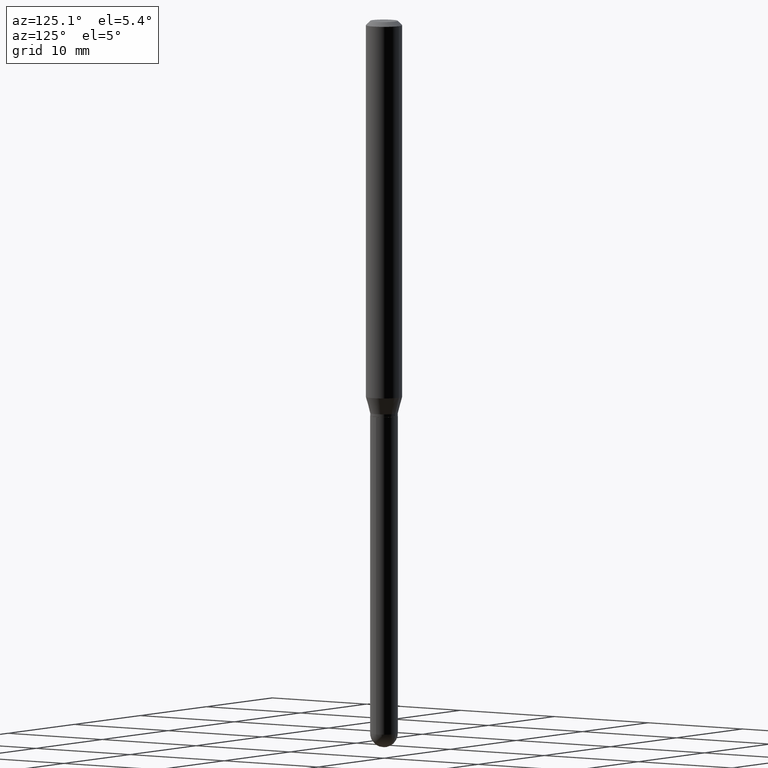
[diagram: clean part render]
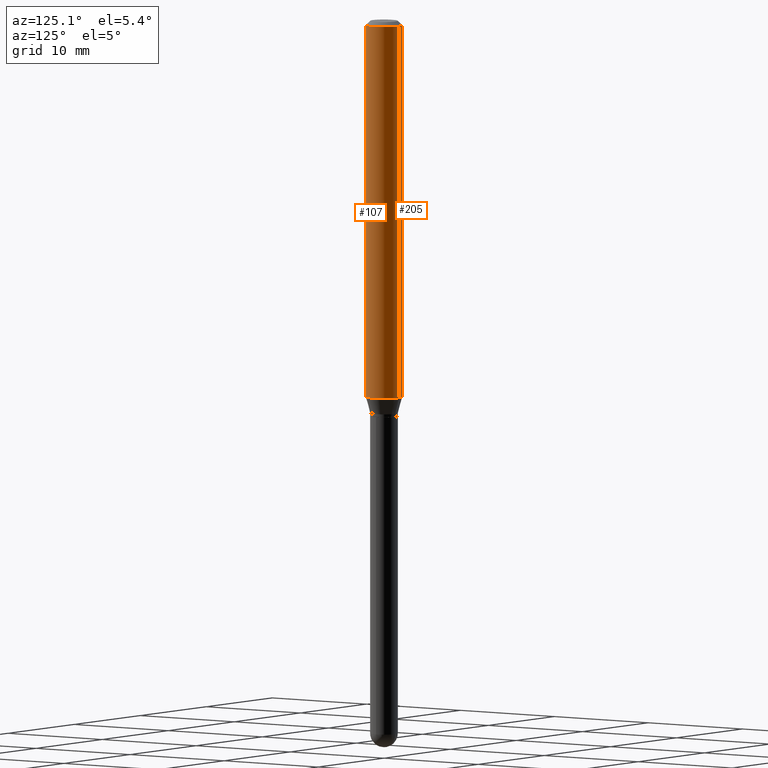
[diagram: same view with one multi-face feature highlighted, each face labeled with its STEP entity id]
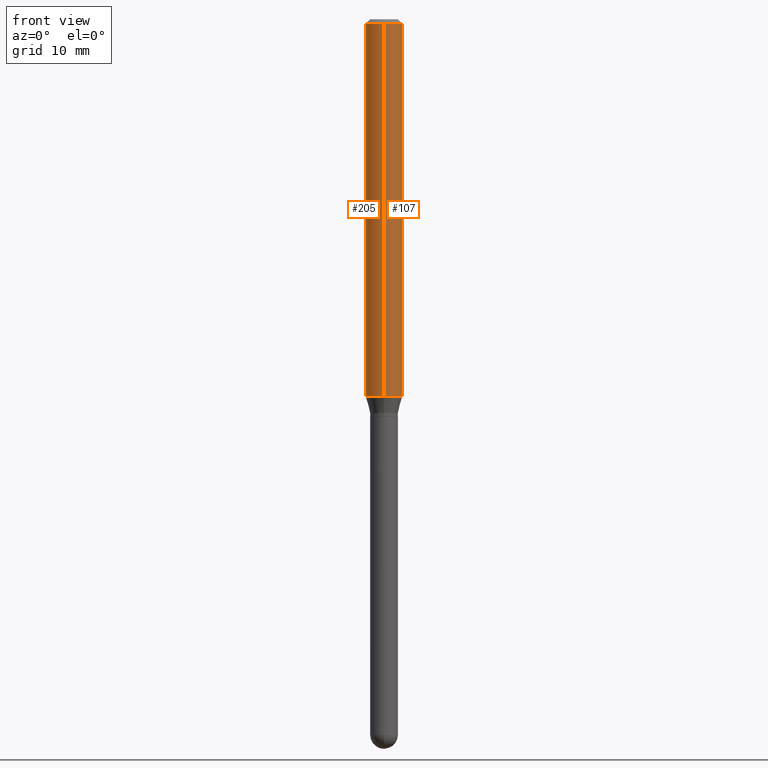
[diagram: same view with one multi-face feature highlighted, each face labeled with its STEP entity id]
A machine part, auxiliary view. The highlighted faces form ONE feature: a constant-radius fillet chain: 2 tangent blend faces with common blend radius 1.5875 mm. The faces share edges in the B-rep.
A second angle (front view) of the same feature is appended — it is thin or edge-on in the first view.
Their STEP definitions:
[1] entity #205 (Cylinder):
#3 = VECTOR ( 'NONE', #182, 39.37007874015748143 ) ;
#19 = ORIENTED_EDGE ( 'NONE', *, *, #173, .T. ) ;
#56 = ORIENTED_EDGE ( 'NONE', *, *, #506, .T. ) ;
#59 = DIRECTION ( 'NONE',  ( -6.982962677686265922E-15, -1.000000000000000000, 4.370956789862821150E-15 ) ) ;
#72 = VERTEX_POINT ( 'NONE', #81 ) ;
#81 = CARTESIAN_POINT ( 'NONE',  ( 4.440892098500944664E-16, 0.06249999999999995143, -0.01500000000000028394 ) ) ;
#82 = DIRECTION ( 'NONE',  ( -2.445498962986345220E-29, 3.491438152587396054E-15, 1.000000000000000000 ) ) ;
#89 = DIRECTION ( 'NONE',  ( -2.445498962986345500E-29, 3.491438152587396054E-15, 1.000000000000000000 ) ) ;
#104 = ORIENTED_EDGE ( 'NONE', *, *, #477, .F. ) ;
#131 = VERTEX_POINT ( 'NONE', #251 ) ;
#135 = ORIENTED_EDGE ( 'NONE', *, *, #379, .F. ) ;
#143 = VERTEX_POINT ( 'NONE', #408 ) ;
#167 = CARTESIAN_POINT ( 'NONE',  ( 4.440892098500943678E-16, 0.06249999999999551054, -1.294019237886466334 ) ) ;
#172 = FACE_OUTER_BOUND ( 'NONE', #492, .T. ) ;
#173 = EDGE_CURVE ( 'NONE', #262, #143, #232, .T. ) ;
#181 = LINE ( 'NONE', #337, #3 ) ;
#182 = DIRECTION ( 'NONE',  ( -2.445498962986345220E-29, 3.491438152587396054E-15, 1.000000000000000000 ) ) ;
#186 = AXIS2_PLACEMENT_3D ( 'NONE', #356, #268, #272 ) ;
#187 = DIRECTION ( 'NONE',  ( -6.982962677686265922E-15, -1.000000000000000000, 3.491438152587396054E-15 ) ) ;
#190 = AXIS2_PLACEMENT_3D ( 'NONE', #301, #414, #59 ) ;
#205 = ADVANCED_FACE ( 'NONE', ( #172 ), #293, .T. ) ;
#232 = CIRCLE ( 'NONE', #190, 0.06250000000000000000 ) ;
#234 = LINE ( 'NONE', #502, #277 ) ;
#251 = CARTESIAN_POINT ( 'NONE',  ( -4.364351673553912750E-16, -0.06250000000000005551, -0.01499999999999984852 ) ) ;
#262 = VERTEX_POINT ( 'NONE', #167 ) ;
#268 = DIRECTION ( 'NONE',  ( -2.445498962986345500E-29, 3.491438152587396054E-15, 1.000000000000000000 ) ) ;
#272 = DIRECTION ( 'NONE',  ( -6.982962677686265922E-15, -1.000000000000000000, 3.483106191921935554E-15 ) ) ;
#277 = VECTOR ( 'NONE', #82, 39.37007874015748143 ) ;
#293 = CYLINDRICAL_SURFACE ( 'NONE', #366, 0.06250000000000000000 ) ;
#301 = CARTESIAN_POINT ( 'NONE',  ( 3.164522704335733428E-29, -4.517988137338873402E-15, -1.294019237886466112 ) ) ;
#337 = CARTESIAN_POINT ( 'NONE',  ( 4.440892098500625669E-16, 0.06250000000000000000, -2.182148845367122534E-16 ) ) ;
#356 = CARTESIAN_POINT ( 'NONE',  ( 3.668248444479534418E-31, -5.237157228881117032E-17, -0.01500000000000006710 ) ) ;
#366 = AXIS2_PLACEMENT_3D ( 'NONE', #445, #89, #187 ) ;
#379 = EDGE_CURVE ( 'NONE', #262, #72, #181, .T. ) ;
#408 = CARTESIAN_POINT ( 'NONE',  ( -4.364351673553597698E-16, -0.06250000000000448253, -1.294019237886465890 ) ) ;
#414 = DIRECTION ( 'NONE',  ( -2.445498962986345500E-29, 3.491438152587396054E-15, 1.000000000000000000 ) ) ;
#430 = CIRCLE ( 'NONE', #186, 0.06250000000000000000 ) ;
#445 = CARTESIAN_POINT ( 'NONE',  ( 0.000000000000000000, 0.000000000000000000, 0.000000000000000000 ) ) ;
#477 = EDGE_CURVE ( 'NONE', #72, #131, #430, .T. ) ;
#492 = EDGE_LOOP ( 'NONE', ( #135, #19, #56, #104 ) ) ;
#502 = CARTESIAN_POINT ( 'NONE',  ( -4.364351673553916201E-16, -0.06250000000000000000, 2.182148845367122534E-16 ) ) ;
#506 = EDGE_CURVE ( 'NONE', #143, #131, #234, .T. ) ;
[2] entity #107 (Cylinder):
#3 = VECTOR ( 'NONE', #182, 39.37007874015748143 ) ;
#28 = EDGE_CURVE ( 'NONE', #131, #72, #75, .T. ) ;
#72 = VERTEX_POINT ( 'NONE', #81 ) ;
#75 = CIRCLE ( 'NONE', #288, 0.06250000000000000000 ) ;
#81 = CARTESIAN_POINT ( 'NONE',  ( 4.440892098500944664E-16, 0.06249999999999995143, -0.01500000000000028394 ) ) ;
#82 = DIRECTION ( 'NONE',  ( -2.445498962986345220E-29, 3.491438152587396054E-15, 1.000000000000000000 ) ) ;
#107 = ADVANCED_FACE ( 'NONE', ( #402 ), #322, .T. ) ;
#110 = EDGE_LOOP ( 'NONE', ( #311, #185, #274, #376 ) ) ;
#111 = CARTESIAN_POINT ( 'NONE',  ( 3.164522704335733428E-29, -4.517988137338873402E-15, -1.294019237886466112 ) ) ;
#123 = DIRECTION ( 'NONE',  ( -6.982962677686265922E-15, -1.000000000000000000, 3.491438152587396054E-15 ) ) ;
#131 = VERTEX_POINT ( 'NONE', #251 ) ;
#138 = DIRECTION ( 'NONE',  ( -2.445498962986345500E-29, 3.491438152587396054E-15, 1.000000000000000000 ) ) ;
#142 = CIRCLE ( 'NONE', #184, 0.06250000000000000000 ) ;
#143 = VERTEX_POINT ( 'NONE', #408 ) ;
#163 = DIRECTION ( 'NONE',  ( -6.982962677686265922E-15, -1.000000000000000000, 3.483106191921935554E-15 ) ) ;
#165 = CARTESIAN_POINT ( 'NONE',  ( 0.000000000000000000, 0.000000000000000000, 0.000000000000000000 ) ) ;
#167 = CARTESIAN_POINT ( 'NONE',  ( 4.440892098500943678E-16, 0.06249999999999551054, -1.294019237886466334 ) ) ;
#181 = LINE ( 'NONE', #337, #3 ) ;
#182 = DIRECTION ( 'NONE',  ( -2.445498962986345220E-29, 3.491438152587396054E-15, 1.000000000000000000 ) ) ;
#184 = AXIS2_PLACEMENT_3D ( 'NONE', #111, #138, #330 ) ;
#185 = ORIENTED_EDGE ( 'NONE', *, *, #379, .T. ) ;
#234 = LINE ( 'NONE', #502, #277 ) ;
#238 = CARTESIAN_POINT ( 'NONE',  ( 3.668248444479534418E-31, -5.237157228881117032E-17, -0.01500000000000006710 ) ) ;
#251 = CARTESIAN_POINT ( 'NONE',  ( -4.364351673553912750E-16, -0.06250000000000005551, -0.01499999999999984852 ) ) ;
#262 = VERTEX_POINT ( 'NONE', #167 ) ;
#269 = EDGE_CURVE ( 'NONE', #143, #262, #142, .T. ) ;
#274 = ORIENTED_EDGE ( 'NONE', *, *, #28, .F. ) ;
#277 = VECTOR ( 'NONE', #82, 39.37007874015748143 ) ;
#288 = AXIS2_PLACEMENT_3D ( 'NONE', #238, #512, #163 ) ;
#311 = ORIENTED_EDGE ( 'NONE', *, *, #269, .T. ) ;
#322 = CYLINDRICAL_SURFACE ( 'NONE', #405, 0.06250000000000000000 ) ;
#330 = DIRECTION ( 'NONE',  ( -6.982962677686265922E-15, -1.000000000000000000, 4.370956789862821150E-15 ) ) ;
#337 = CARTESIAN_POINT ( 'NONE',  ( 4.440892098500625669E-16, 0.06250000000000000000, -2.182148845367122534E-16 ) ) ;
#376 = ORIENTED_EDGE ( 'NONE', *, *, #506, .F. ) ;
#379 = EDGE_CURVE ( 'NONE', #262, #72, #181, .T. ) ;
#402 = FACE_OUTER_BOUND ( 'NONE', #110, .T. ) ;
#405 = AXIS2_PLACEMENT_3D ( 'NONE', #165, #473, #123 ) ;
#408 = CARTESIAN_POINT ( 'NONE',  ( -4.364351673553597698E-16, -0.06250000000000448253, -1.294019237886465890 ) ) ;
#473 = DIRECTION ( 'NONE',  ( -2.445498962986345500E-29, 3.491438152587396054E-15, 1.000000000000000000 ) ) ;
#502 = CARTESIAN_POINT ( 'NONE',  ( -4.364351673553916201E-16, -0.06250000000000000000, 2.182148845367122534E-16 ) ) ;
#506 = EDGE_CURVE ( 'NONE', #143, #131, #234, .T. ) ;
#512 = DIRECTION ( 'NONE',  ( -2.445498962986345500E-29, 3.491438152587396054E-15, 1.000000000000000000 ) ) ;